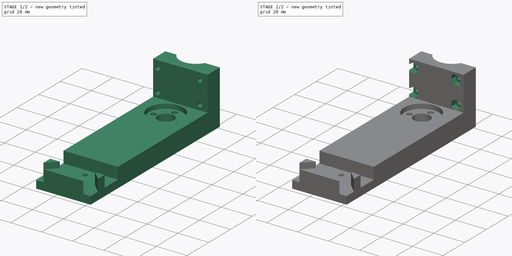
[diagram: build sequence overview — one tinted view per stage of 2, left to right]
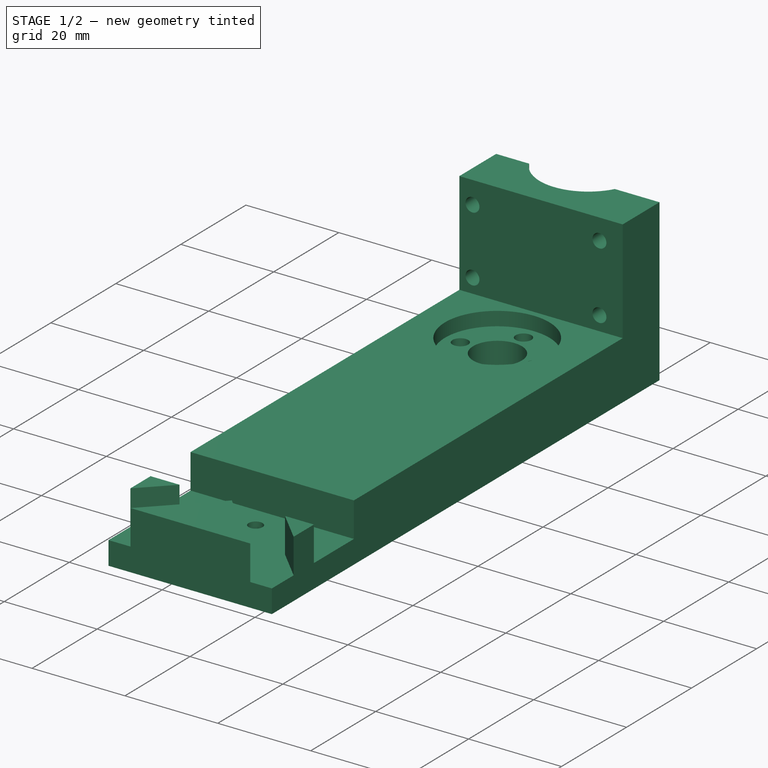
[diagram: stage 1 of 2 — iso view after this stage's code; geometry added in this stage tinted green]
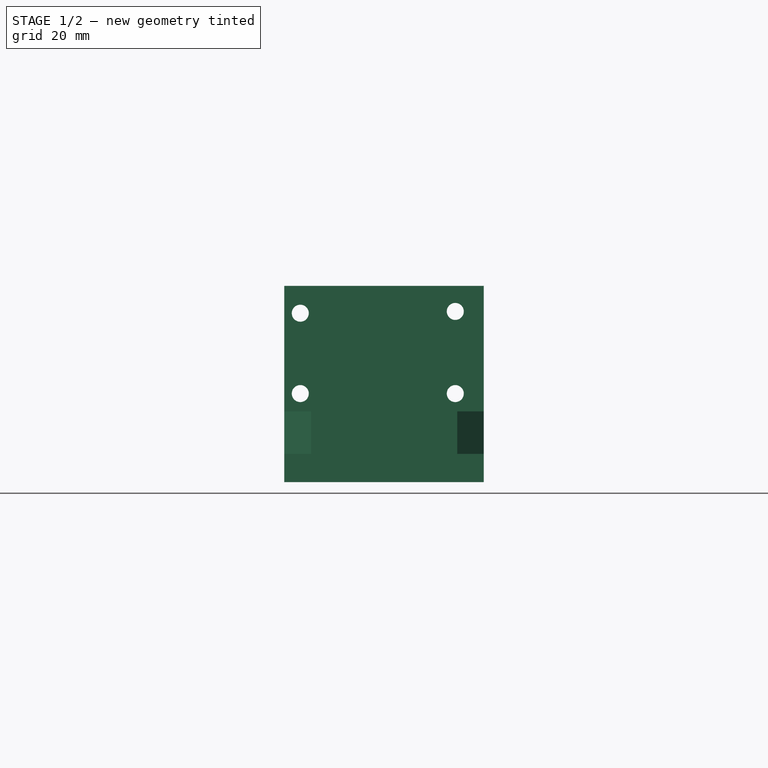
[diagram: stage 1 of 2 — front view after this stage's code; geometry added in this stage tinted green]
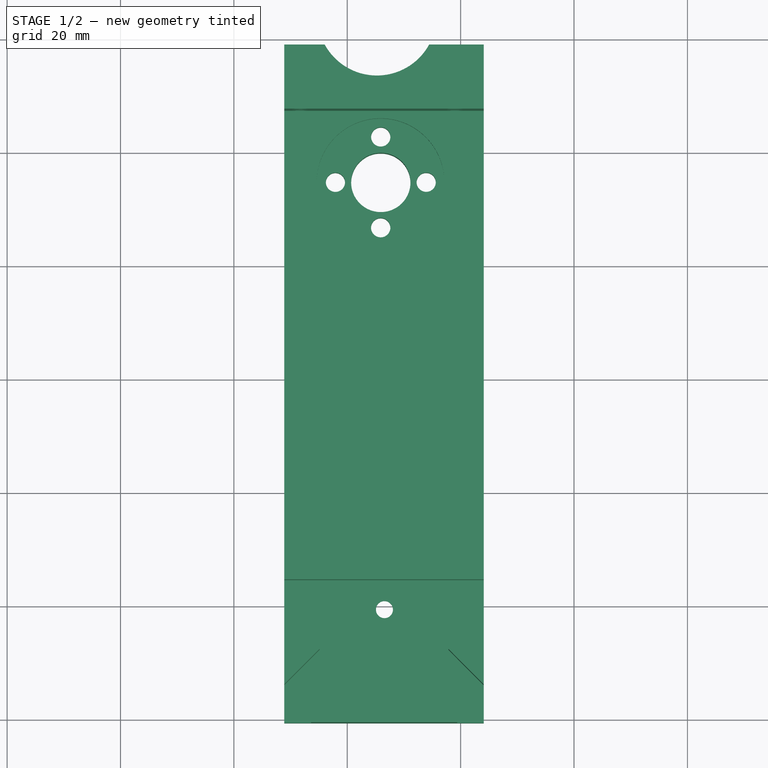
[diagram: stage 1 of 2 — top view after this stage's code; geometry added in this stage tinted green]
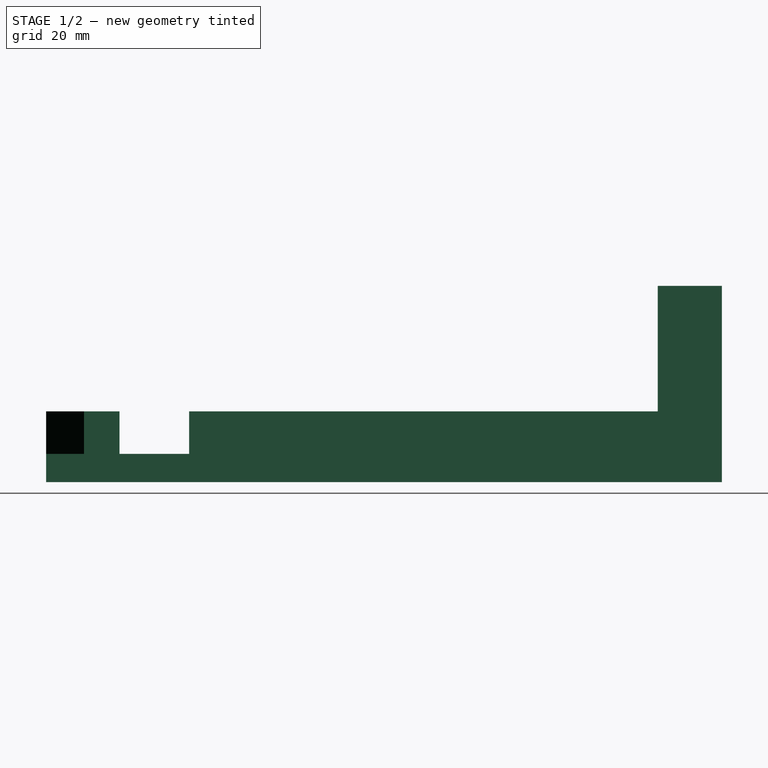
[diagram: stage 1 of 2 — right view after this stage's code; geometry added in this stage tinted green]
FCSTD DOCUMENT  (FreeCAD 2024.2R37179 (Git))
Label: back_bed_connector
License: All rights reserved
LicenseURL: http://en.wikipedia.org/wiki/All_rights_reserved
objects: Part::Feature×1, PartDesign::FeatureBase×1, Sketcher::SketchObject×1, PartDesign::Pocket×1, PartDesign::Body×1
note: 6 computed .brp shape members not serialized (recipe doc carries the construction recipe); baked Part::Feature solids carry a one-line shape summary decoded from their .brp

FEATURE [Part::Feature] Pocket024
  shape: bbox 35.18 x 119.2 x 34.64 mm, 49 faces (baked)
FEATURE [PartDesign::FeatureBase] BaseFeature
  BaseFeature = -> Pocket024
  Suppressed = false
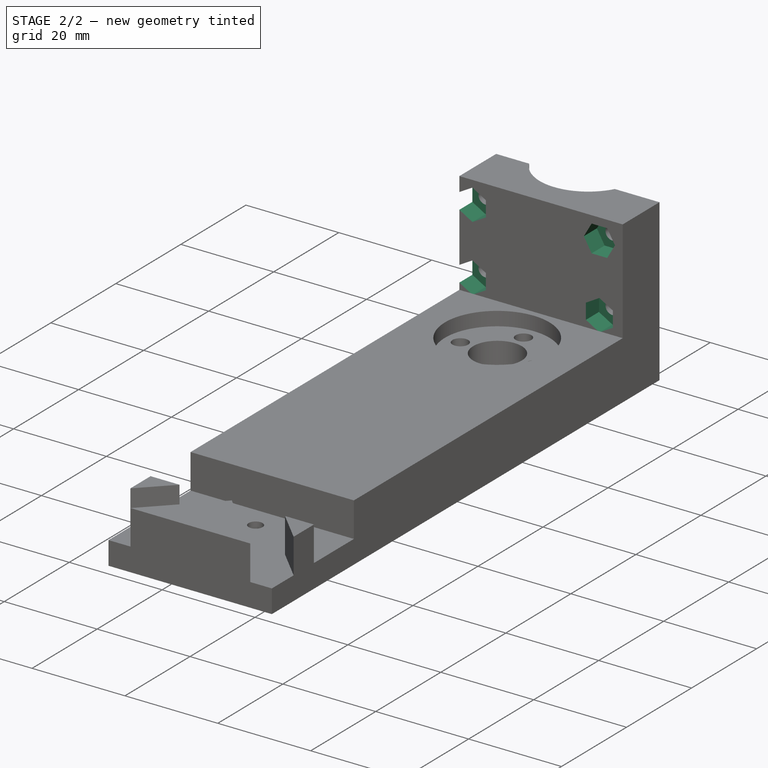
[diagram: stage 2 of 2 — iso view after this stage's code; geometry added in this stage tinted green]
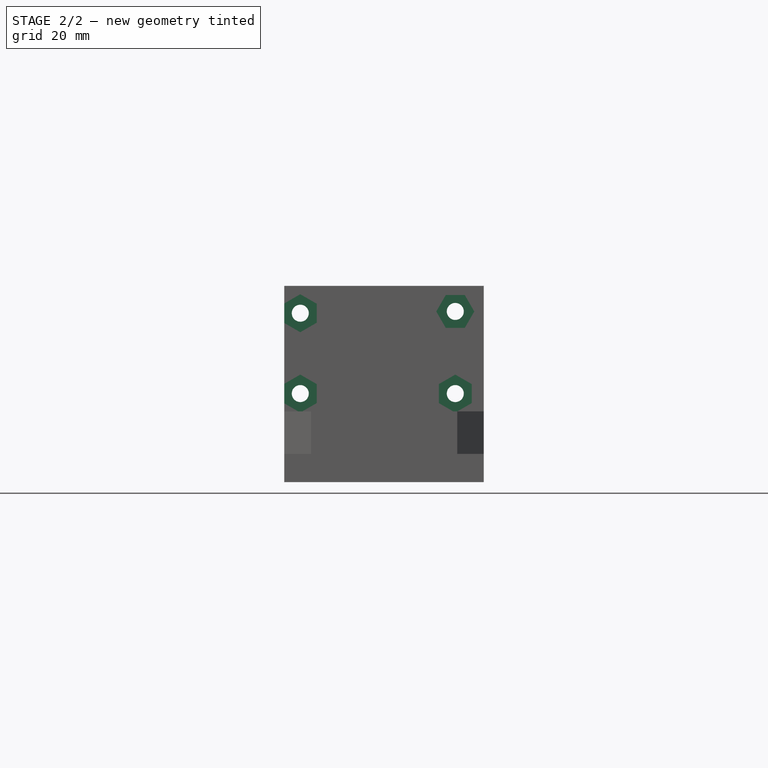
[diagram: stage 2 of 2 — front view after this stage's code; geometry added in this stage tinted green]
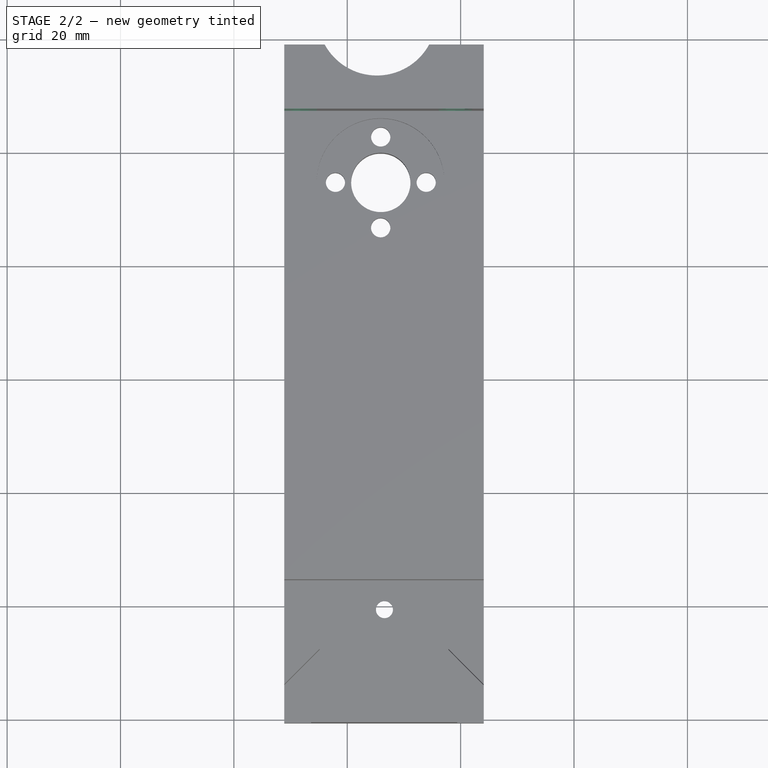
[diagram: stage 2 of 2 — top view after this stage's code; geometry added in this stage tinted green]
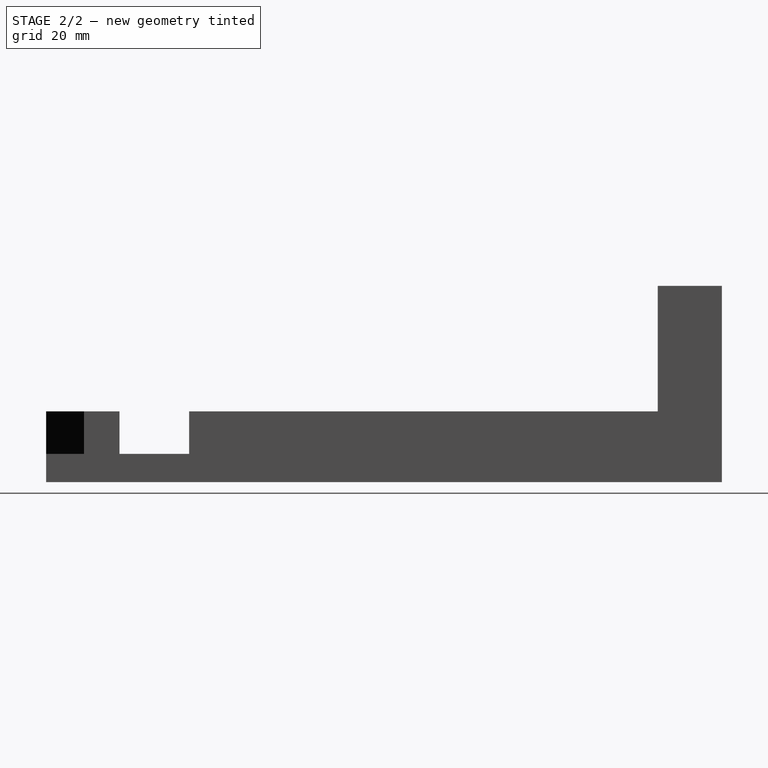
[diagram: stage 2 of 2 — right view after this stage's code; geometry added in this stage tinted green]
FEATURE [Sketcher::SketchObject] Sketch
  AttachmentSupport = -> [BaseFeature]
  FullyConstrained = false
  MapMode = 5
  Placement = pos=(0,207.272,0) rot=(1,0,0;1.5708rad)
  sketch-geometry (28):
    g0: LineSegment StartX=491.709 StartY=-160.847 StartZ=0 EndX=488.808 EndY=-162.522 EndZ=0
    g1: LineSegment StartX=488.808 StartY=-162.522 StartZ=0 EndX=488.808 EndY=-165.872 EndZ=0
    g2: LineSegment StartX=488.808 StartY=-165.872 StartZ=0 EndX=491.709 EndY=-167.547 EndZ=0
    g3: LineSegment StartX=491.709 StartY=-167.547 StartZ=0 EndX=494.61 EndY=-165.872 EndZ=0
    g4: LineSegment StartX=494.61 StartY=-165.872 StartZ=0 EndX=494.61 EndY=-162.522 EndZ=0
    g5: LineSegment StartX=494.61 StartY=-162.522 StartZ=0 EndX=491.709 EndY=-160.847 EndZ=0
    g6: Circle CenterX=491.709 CenterY=-164.197 CenterZ=0 NormalX=0 NormalY=0 NormalZ=1 AngleXU=0 Radius=3.35
    g7: LineSegment StartX=491.711 StartY=-175.023 StartZ=0 EndX=488.81 EndY=-176.698 EndZ=0
    g8: LineSegment StartX=488.81 StartY=-176.698 StartZ=0 EndX=488.81 EndY=-180.048 EndZ=0
    g9: LineSegment StartX=488.81 StartY=-180.048 StartZ=0 EndX=491.711 EndY=-181.723 EndZ=0
    g10: LineSegment StartX=491.711 StartY=-181.723 StartZ=0 EndX=494.612 EndY=-180.048 EndZ=0
    g11: LineSegment StartX=494.612 StartY=-180.048 StartZ=0 EndX=494.612 EndY=-176.698 EndZ=0
    g12: LineSegment StartX=494.612 StartY=-176.698 StartZ=0 EndX=491.711 EndY=-175.023 EndZ=0
    g13: Circle CenterX=491.711 CenterY=-178.373 CenterZ=0 NormalX=0 NormalY=0 NormalZ=1 AngleXU=0 Radius=3.35
    g14: LineSegment StartX=522.402 StartY=-163.888 StartZ=0 EndX=520.727 EndY=-160.987 EndZ=0
    g15: LineSegment StartX=520.727 StartY=-160.987 StartZ=0 EndX=517.377 EndY=-160.987 EndZ=0
    g16: LineSegment StartX=517.377 StartY=-160.987 StartZ=0 EndX=515.702 EndY=-163.888 EndZ=0
    g17: LineSegment StartX=515.702 StartY=-163.888 StartZ=0 EndX=517.377 EndY=-166.789 EndZ=0
    g18: LineSegment StartX=517.377 StartY=-166.789 StartZ=0 EndX=520.727 EndY=-166.789 EndZ=0
    g19: LineSegment StartX=520.727 StartY=-166.789 StartZ=0 EndX=522.402 EndY=-163.888 EndZ=0
    g20: Circle CenterX=519.052 CenterY=-163.888 CenterZ=0 NormalX=0 NormalY=0 NormalZ=1 AngleXU=0 Radius=3.35
    g21: LineSegment StartX=519.052 StartY=-175.023 StartZ=0 EndX=516.151 EndY=-176.698 EndZ=0
    g22: LineSegment StartX=516.151 StartY=-176.698 StartZ=0 EndX=516.151 EndY=-180.048 EndZ=0
    g23: LineSegment StartX=516.151 StartY=-180.048 StartZ=0 EndX=519.052 EndY=-181.723 EndZ=0
    g24: LineSegment StartX=519.052 StartY=-181.723 StartZ=0 EndX=521.953 EndY=-180.048 EndZ=0
    g25: LineSegment StartX=521.953 StartY=-180.048 StartZ=0 EndX=521.953 EndY=-176.698 EndZ=0
    g26: LineSegment StartX=521.953 StartY=-176.698 StartZ=0 EndX=519.052 EndY=-175.023 EndZ=0
    g27: Circle CenterX=519.052 CenterY=-178.373 CenterZ=0 NormalX=0 NormalY=0 NormalZ=1 AngleXU=0 Radius=3.35
  constraints (56):
    c: Coincident(g0,g1)
    c: Coincident(g1,g2)
    c: Coincident(g2,g3)
    c: Coincident(g3,g4)
    c: Coincident(g4,g5)
    c: Coincident(g5,g0)
    c: Equal(g0, g1-g5) x5
    c: PointOnObject(g0,g6)
    c: PointOnObject(g1,g6)
    c: PointOnObject(g2,g6)
    c: PointOnObject(g3,g6)
    c: PointOnObject(g4,g6)
    c: PointOnObject(g5,g6)
    c: Radius(g6) = 3.35
    c: Coincident(g7,g8)
    c: Coincident(g8,g9)
    c: Coincident(g9,g10)
    c: Coincident(g10,g11)
    c: Coincident(g11,g12)
    c: Coincident(g12,g7)
    c: Equal(g7, g8-g12) x5
    c: PointOnObject(g7,g13)
    c: PointOnObject(g8,g13)
    c: PointOnObject(g9,g13)
    c: PointOnObject(g10,g13)
    c: PointOnObject(g11,g13)
    c: PointOnObject(g12,g13)
    c: Radius(g13) = 3.35
    c: Coincident(g14,g15)
    c: Coincident(g15,g16)
    c: Coincident(g16,g17)
    c: Coincident(g17,g18)
    c: Coincident(g18,g19)
    c: Coincident(g19,g14)
    c: Equal(g14, g15-g19) x5
    c: PointOnObject(g14,g20)
    c: PointOnObject(g15,g20)
    c: PointOnObject(g16,g20)
    c: PointOnObject(g17,g20)
    c: PointOnObject(g18,g20)
    c: PointOnObject(g19,g20)
    c: Radius(g20) = 3.35
    c: Coincident(g21,g22)
    c: Coincident(g22,g23)
    c: Coincident(g23,g24)
    c: Coincident(g24,g25)
    c: Coincident(g25,g26)
    c: Coincident(g26,g21)
    c: Equal(g21, g22-g26) x5
    c: PointOnObject(g21,g27)
    c: PointOnObject(g22,g27)
    c: PointOnObject(g23,g27)
    c: PointOnObject(g24,g27)
    c: PointOnObject(g25,g27)
    c: PointOnObject(g26,g27)
    c: Radius(g27) = 3.35
FEATURE [PartDesign::Pocket] Pocket
  BaseFeature = -> BaseFeature
  Direction = (0,1,-2e-16)
  Length = 4
  Length2 = 5
  Profile = -> Sketch
  ReferenceAxis = -> Sketch [N_Axis]
  Refine = true
  Suppressed = false
  Type = 0
FEATURE [PartDesign::Body] Body
  BaseFeature = -> Pocket024
  Group = -> [BaseFeature,Sketch,Pocket]
  Origin = -> Origin
  Tip = -> Pocket
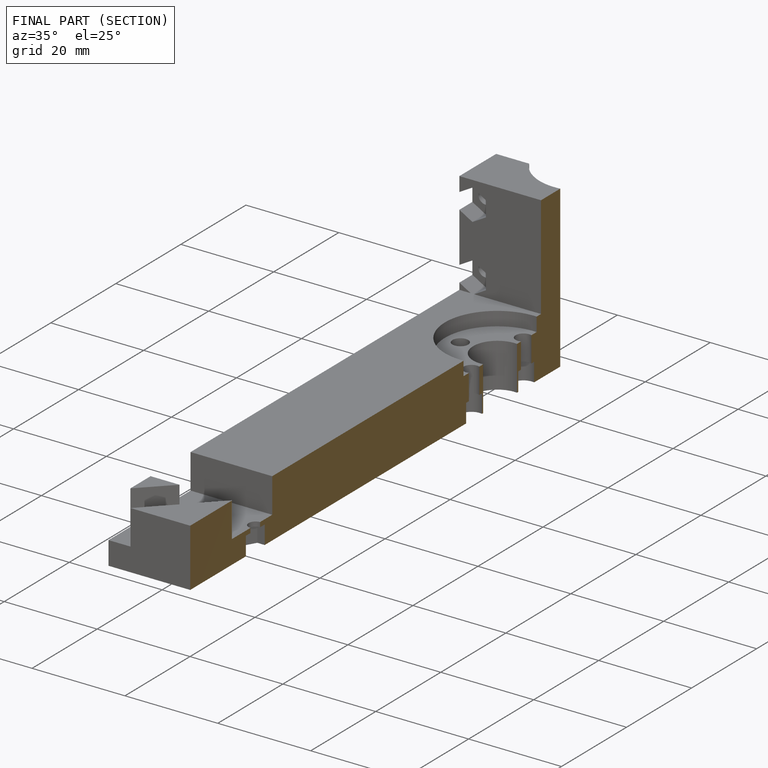
[diagram: finished part — half-section view (interior)]
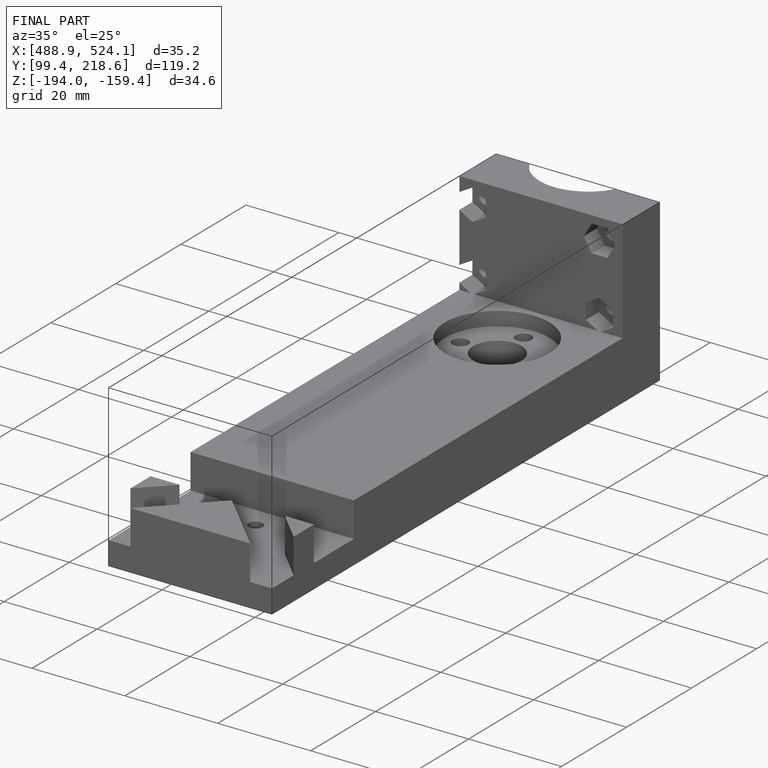
[diagram: finished part — iso view with bounding-box wireframe]
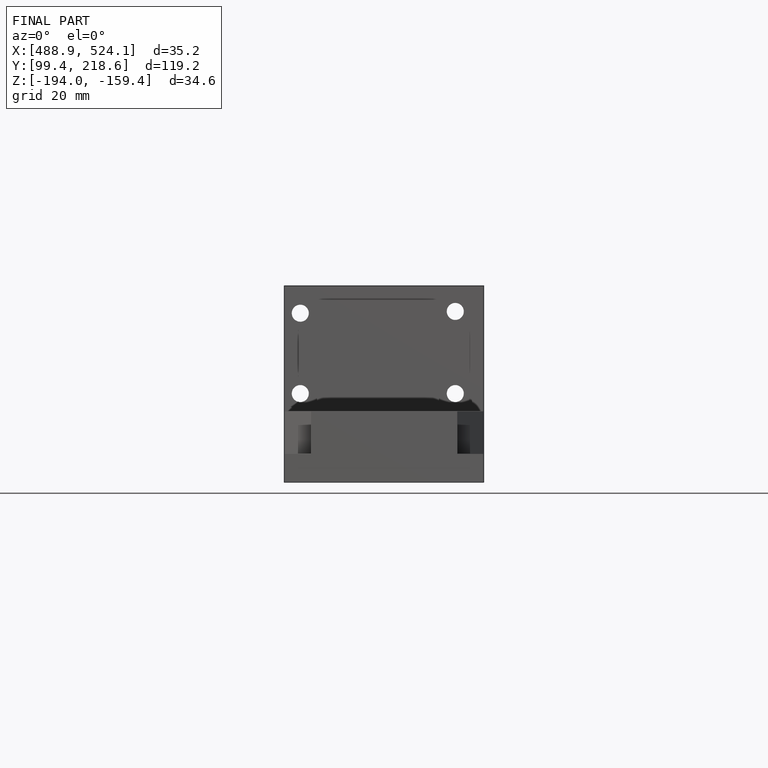
[diagram: finished part — front view with bounding-box wireframe]
